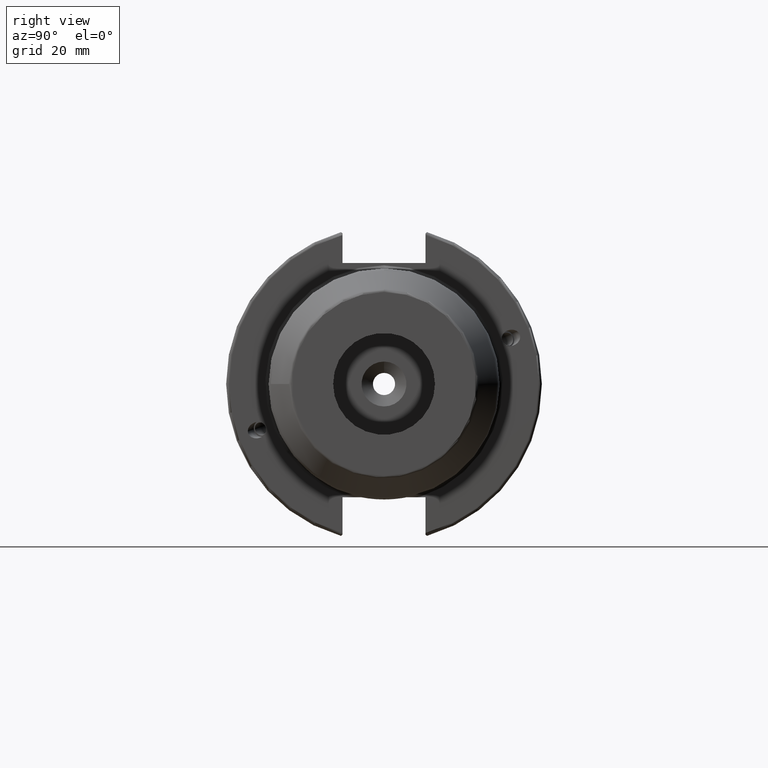
[diagram: clean part render]
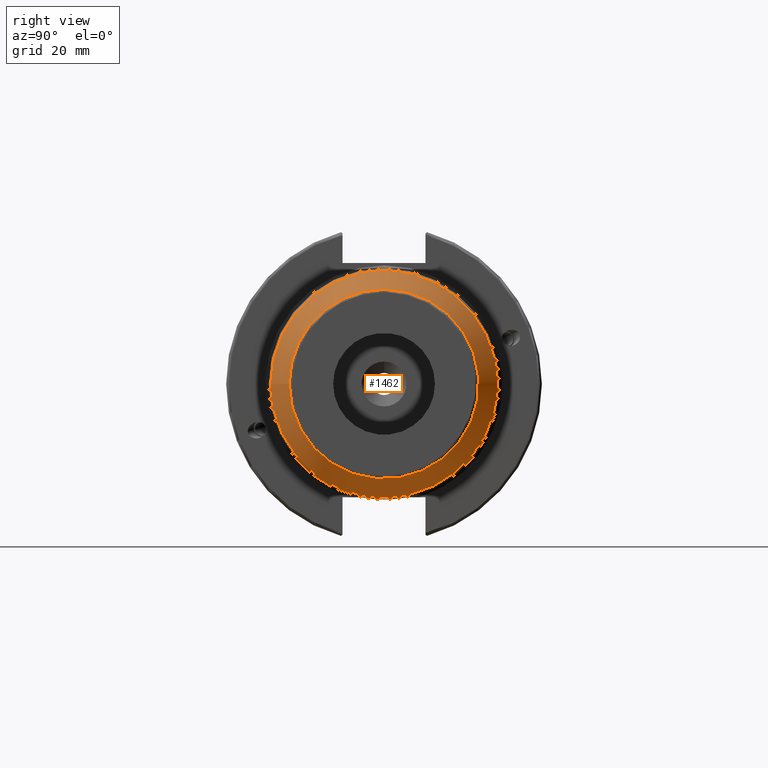
[diagram: same view with one face highlighted and labeled with its STEP entity id]
A machine part, right view. The second image highlights one B-rep face of the part: STEP entity #1462.
In plain terms, the highlighted conical surface has half-angle 30 deg.
Its self-contained STEP definition (entity closure, byte-faithful):
#134=CONICAL_SURFACE('',#1582,32.625,0.523598775598299);
#152=FACE_OUTER_BOUND('',#239,.T.);
#239=EDGE_LOOP('',(#989,#990,#991,#992,#993,#994));
#342=LINE('',#2270,#423);
#423=VECTOR('',#1801,32.625);
#506=CIRCLE('',#1577,35.3301270189222);
#507=CIRCLE('',#1578,35.3301270189222);
#511=CIRCLE('',#1583,29.5386751345948);
#512=CIRCLE('',#1584,29.5386751345948);
#595=VERTEX_POINT('',#2257);
#596=VERTEX_POINT('',#2258);
#599=VERTEX_POINT('',#2267);
#600=VERTEX_POINT('',#2268);
#749=EDGE_CURVE('',#595,#596,#506,.T.);
#750=EDGE_CURVE('',#596,#595,#507,.T.);
#754=EDGE_CURVE('',#599,#600,#511,.T.);
#755=EDGE_CURVE('',#599,#596,#342,.T.);
#756=EDGE_CURVE('',#600,#599,#512,.T.);
#989=ORIENTED_EDGE('',*,*,#754,.F.);
#990=ORIENTED_EDGE('',*,*,#755,.T.);
#991=ORIENTED_EDGE('',*,*,#749,.F.);
#992=ORIENTED_EDGE('',*,*,#750,.F.);
#993=ORIENTED_EDGE('',*,*,#755,.F.);
#994=ORIENTED_EDGE('',*,*,#756,.F.);
#1462=ADVANCED_FACE('',(#152),#134,.T.);
#1577=AXIS2_PLACEMENT_3D('',#2259,#1787,#1788);
#1578=AXIS2_PLACEMENT_3D('',#2260,#1789,#1790);
#1582=AXIS2_PLACEMENT_3D('',#2266,#1797,#1798);
#1583=AXIS2_PLACEMENT_3D('',#2269,#1799,#1800);
#1584=AXIS2_PLACEMENT_3D('',#2271,#1802,#1803);
#1787=DIRECTION('center_axis',(-1.,0.,0.));
#1788=DIRECTION('ref_axis',(0.,-1.,3.06161699786838E-17));
#1789=DIRECTION('center_axis',(-1.,0.,0.));
#1790=DIRECTION('ref_axis',(0.,-1.,3.06161699786838E-17));
#1797=DIRECTION('center_axis',(-1.,0.,0.));
#1798=DIRECTION('ref_axis',(0.,1.,0.));
#1799=DIRECTION('center_axis',(1.,0.,0.));
#1800=DIRECTION('ref_axis',(0.,-1.,3.06161699786838E-17));
#1801=DIRECTION('',(-0.866025403784439,-0.5,-6.12323399573677E-17));
#1802=DIRECTION('center_axis',(1.,0.,0.));
#1803=DIRECTION('ref_axis',(0.,-1.,3.06161699786838E-17));
#2257=CARTESIAN_POINT('',(70.4689110867545,-4.32669269671925E-15,35.3301270189222));
#2258=CARTESIAN_POINT('',(70.4689110867545,-35.3301270189222,-4.32669269671925E-15));
#2259=CARTESIAN_POINT('Origin',(70.4689110867545,0.,-5.40836587089906E-15));
#2260=CARTESIAN_POINT('Origin',(70.4689110867545,0.,-5.40836587089906E-15));
#2266=CARTESIAN_POINT('Origin',(75.154328524455,0.,0.));
#2267=CARTESIAN_POINT('',(80.5,-29.5386751345948,-3.6174443954635E-15));
#2268=CARTESIAN_POINT('',(80.5,-3.6174443954635E-15,29.5386751345948));
#2269=CARTESIAN_POINT('Origin',(80.5,0.,-4.52180549432938E-15));
#2270=CARTESIAN_POINT('',(75.154328524455,-32.625,-3.99541018221824E-15));
#2271=CARTESIAN_POINT('Origin',(80.5,0.,-4.52180549432938E-15));